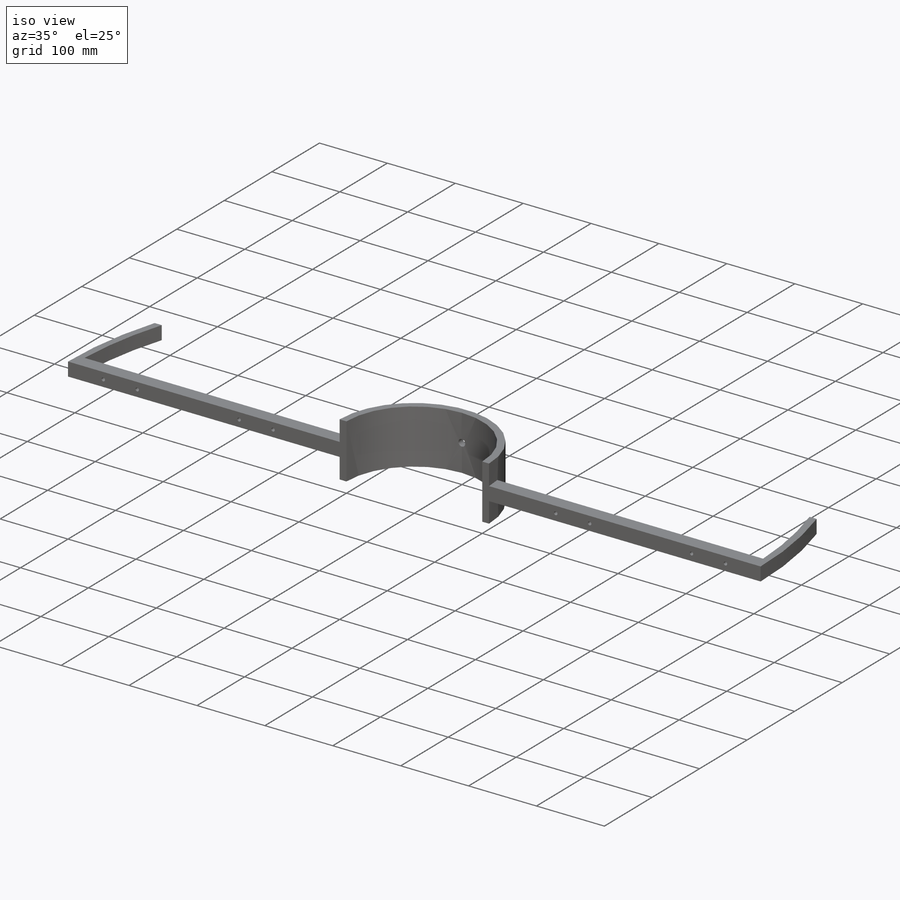
[diagram: iso view]
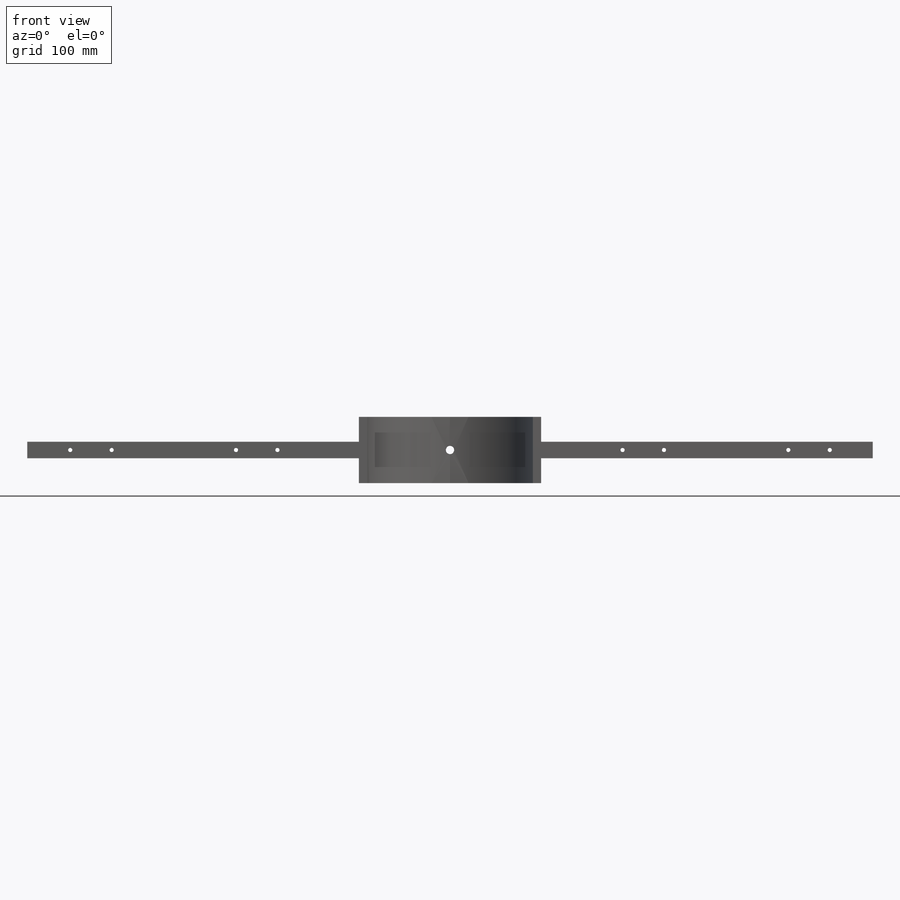
[diagram: front view]
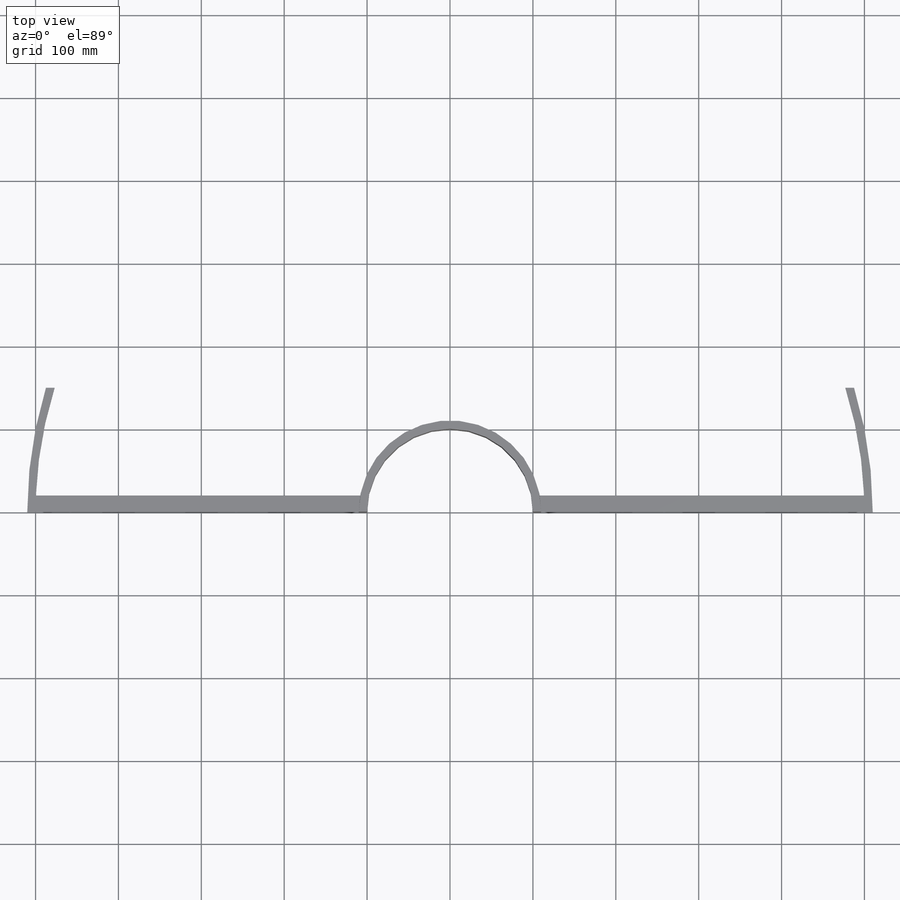
[diagram: top view]
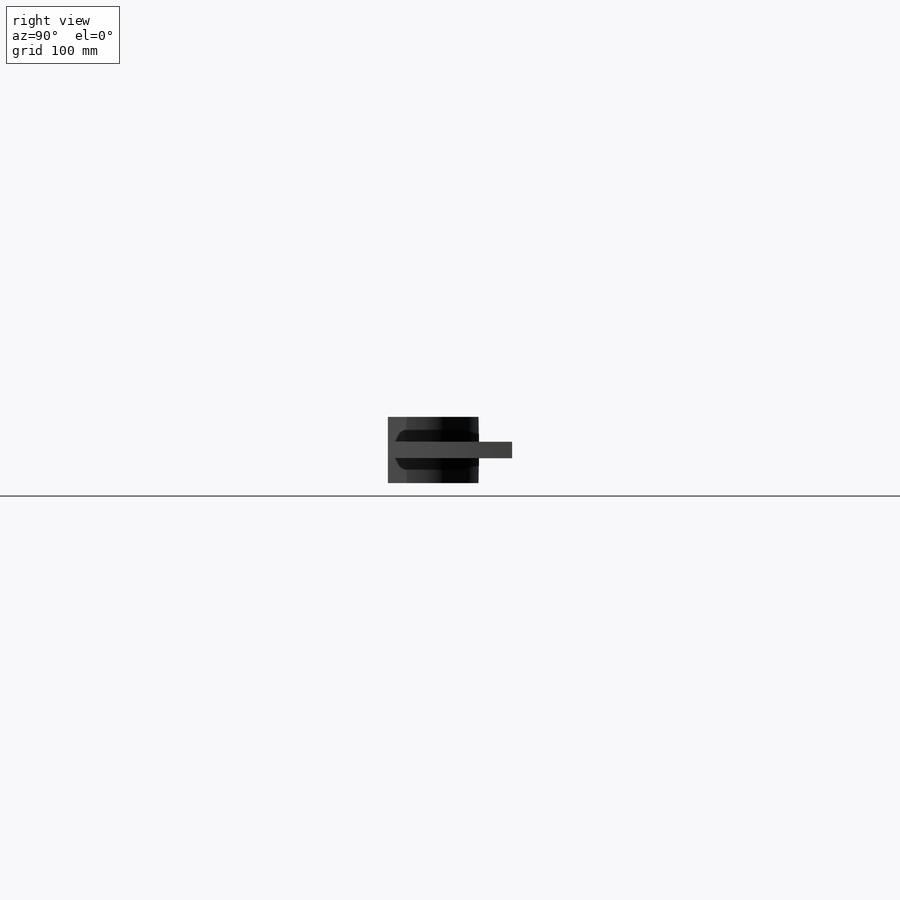
[diagram: right view]
SOLIDWORKS PART (.sldprt)
format: sldprt  version: not decoded by parser v0  size: 254,976 bytes
history: native  units: mm
features: sketch x7, extrude x5, plane x5, cut_extrude x2, material x1 (+12 scaffold rows collapsed)
feature tree (32):
  scaffold x12  (default folders/planes/origin — collapsed)
  material  "Material <not specified>"
  sketch  "Sketch1"  dims[D1=100.0mm D2=110.0mm D3=10.0mm]
  extrude  "Boss-Extrude1"  Depth=80mm
  plane  "Plane1"
  sketch  "Sketch2"  dims[D1=20.0mm D2=20.0mm D3=10.0mm]
  extrude  "Boss-Extrude2"  Depth=400mm
  plane  "Plane2"
  sketch  "Sketch3"
  extrude  "Boss-Extrude3"  Depth=400mm
  plane  "Plane3"
  sketch  "Sketch5"  dims[c1.D1=20.0mm c1.D2=20.0mm c2.D1=150.0mm c2.D2=500.0mm c2.D3=10.0mm c2.D4=200.0mm]
  extrude  "Boss-Extrude4"  Depth=20mm
  sketch  "Sketch7"  dims[D1=10.0mm D2=150.0mm]
  extrude  "Boss-Extrude5"  Depth=20mm
  plane  "Plane5"
  sketch  "Sketch8"  dims[c1.D5=2.0mm c1.D7=~4.877437mm c1.D9=5.0mm c1.D10=5.0mm c1.D11=5.0mm c1.D12=5.0mm c1.D13=5.0mm c1.D14=5.0mm c1.D15=5.0mm c1.D16=5.0mm c1.D1=300.0mm c1.D2=150.0mm c1.D3=150.0mm c1.D4=300.0mm c2.D5=50.0mm c2.D6=50.0mm c2.D7=50.0mm c2.D8=50.0mm]
  cut_extrude  "Cut-Extrude1"  Depth=20mm
  plane  "Plane6"
  sketch  "Sketch9"  dims[D1=10.0mm]
  cut_extrude  "Cut-Extrude3"  Depth=20mm
decode coverage: 13 of 14 modeling features carry decoded parameters
note: ~ marks probable driven/reference dimensions
note: suppression state not decoded; provenance and decode notes live in map.json
